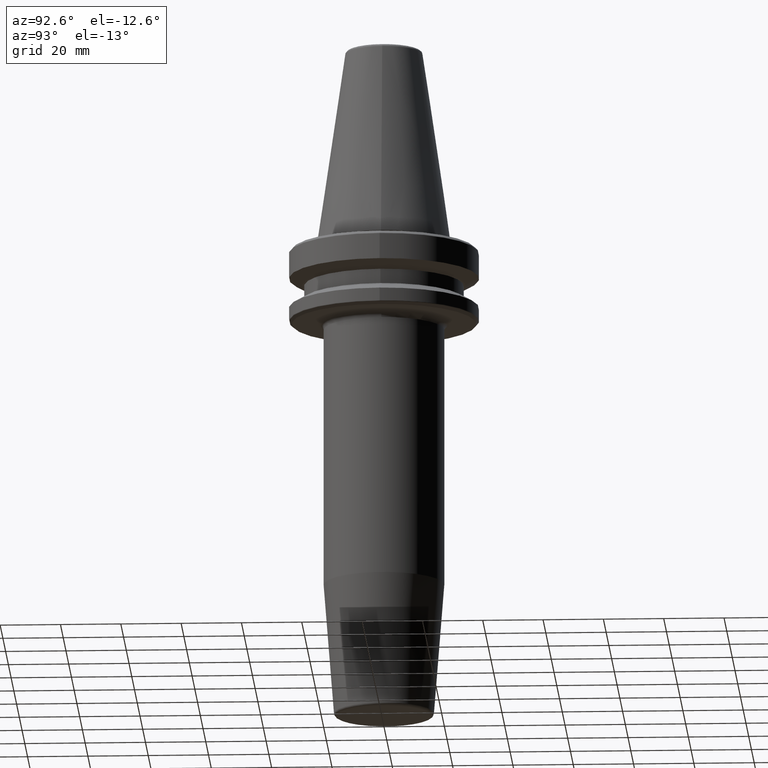
[diagram: clean part render]
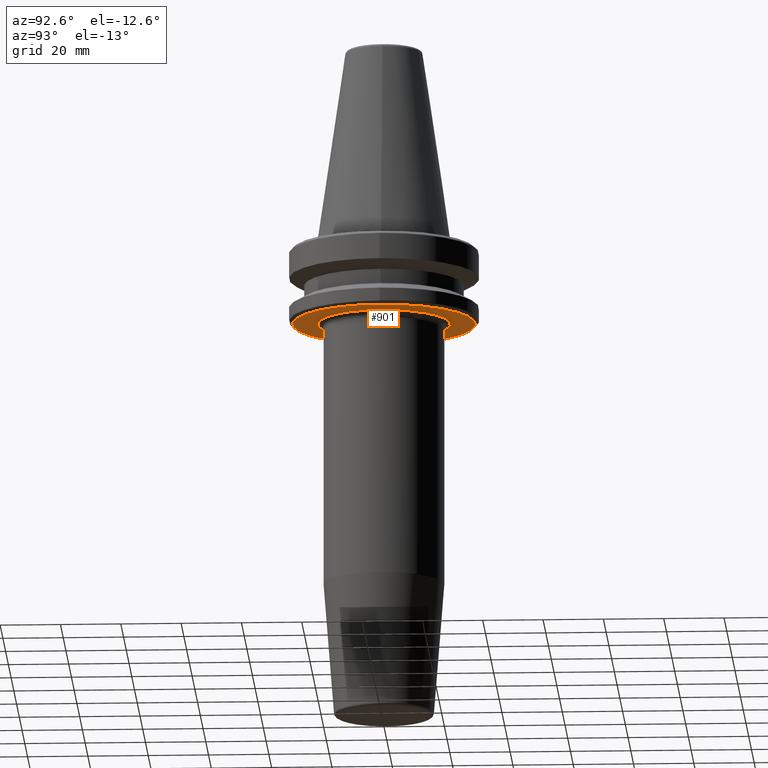
[diagram: same view with one face highlighted and labeled with its STEP entity id]
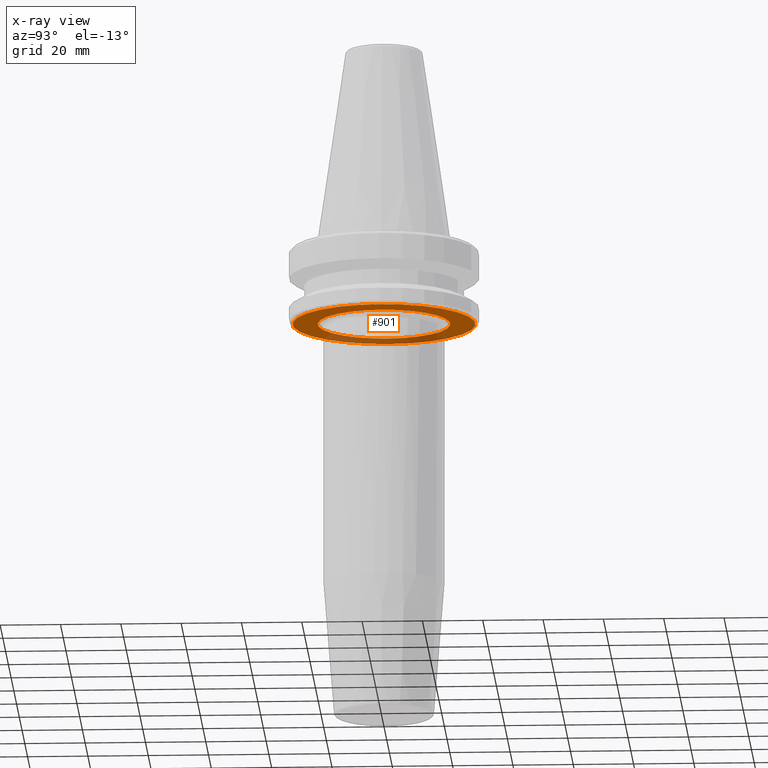
[diagram: x-ray of the same camera — body ghosted, the highlighted face saturated]
A machine part, auxiliary view. The second image highlights one B-rep face of the part: STEP entity #901.
The next image is the same camera in x-ray: the body ghosted, the highlighted face saturated — about 25% of this face is hidden behind the body in this view.
In plain terms, the highlighted planar face has unit normal (0, 0, -1).
Its self-contained STEP definition (entity closure, byte-faithful):
#72 = AXIS2_PLACEMENT_3D ( 'NONE', #1231, #1267, #974 ) ;
#86 = FACE_BOUND ( 'NONE', #1140, .T. ) ;
#131 = EDGE_CURVE ( 'NONE', #266, #232, #340, .T. ) ;
#150 = CARTESIAN_POINT ( 'NONE',  ( 0.0000000000000000000, 1.510090789926056700E-016, -27.00000000000000400 ) ) ;
#155 = DIRECTION ( 'NONE',  ( -0.0000000000000000000, -0.0000000000000000000, 1.000000000000000000 ) ) ;
#160 = VERTEX_POINT ( 'NONE', #1225 ) ;
#206 = EDGE_CURVE ( 'NONE', #960, #160, #315, .T. ) ;
#209 = CARTESIAN_POINT ( 'NONE',  ( 0.0000000000000000000, 3.088089149698245900E-015, -27.00000000000000400 ) ) ;
#232 = VERTEX_POINT ( 'NONE', #1210 ) ;
#256 = CIRCLE ( 'NONE', #72, 30.33431457505076200 ) ;
#266 = VERTEX_POINT ( 'NONE', #613 ) ;
#315 = CIRCLE ( 'NONE', #866, 30.33431457505076200 ) ;
#340 = CIRCLE ( 'NONE', #474, 22.00000000000000000 ) ;
#345 = ORIENTED_EDGE ( 'NONE', *, *, #206, .F. ) ;
#400 = ORIENTED_EDGE ( 'NONE', *, *, #1281, .T. ) ;
#410 = AXIS2_PLACEMENT_3D ( 'NONE', #879, #1158, #662 ) ;
#474 = AXIS2_PLACEMENT_3D ( 'NONE', #150, #155, #486 ) ;
#478 = ORIENTED_EDGE ( 'NONE', *, *, #131, .T. ) ;
#486 = DIRECTION ( 'NONE',  ( -1.000000000000000000, 0.0000000000000000000, 0.0000000000000000000 ) ) ;
#587 = AXIS2_PLACEMENT_3D ( 'NONE', #209, #1101, #1085 ) ;
#589 = FACE_OUTER_BOUND ( 'NONE', #658, .T. ) ;
#613 = CARTESIAN_POINT ( 'NONE',  ( -22.00000000000000000, 1.510090789926056700E-016, -27.00000000000000000 ) ) ;
#658 = EDGE_LOOP ( 'NONE', ( #1239, #345 ) ) ;
#662 = DIRECTION ( 'NONE',  ( -1.000000000000000000, 0.0000000000000000000, 0.0000000000000000000 ) ) ;
#667 = DIRECTION ( 'NONE',  ( -0.0000000000000000000, -0.0000000000000000000, 1.000000000000000000 ) ) ;
#766 = DIRECTION ( 'NONE',  ( 1.000000000000000000, 0.0000000000000000000, 0.0000000000000000000 ) ) ;
#866 = AXIS2_PLACEMENT_3D ( 'NONE', #1269, #667, #766 ) ;
#879 = CARTESIAN_POINT ( 'NONE',  ( 0.0000000000000000000, 1.510090789926056700E-016, -27.00000000000000400 ) ) ;
#901 = ADVANCED_FACE ( 'NONE', ( #86, #589 ), #1086, .T. ) ;
#960 = VERTEX_POINT ( 'NONE', #1237 ) ;
#974 = DIRECTION ( 'NONE',  ( 1.000000000000000000, 0.0000000000000000000, 0.0000000000000000000 ) ) ;
#1085 = DIRECTION ( 'NONE',  ( -1.000000000000000000, 0.0000000000000000000, -0.0000000000000000000 ) ) ;
#1086 = PLANE ( 'NONE',  #587 ) ;
#1101 = DIRECTION ( 'NONE',  ( 0.0000000000000000000, 0.0000000000000000000, -1.000000000000000000 ) ) ;
#1140 = EDGE_LOOP ( 'NONE', ( #478, #400 ) ) ;
#1158 = DIRECTION ( 'NONE',  ( -0.0000000000000000000, -0.0000000000000000000, 1.000000000000000000 ) ) ;
#1199 = EDGE_CURVE ( 'NONE', #160, #960, #256, .T. ) ;
#1210 = CARTESIAN_POINT ( 'NONE',  ( 22.00000000000000000, 2.845232037116782300E-015, -27.00000000000000000 ) ) ;
#1225 = CARTESIAN_POINT ( 'NONE',  ( 30.33431457505076200, 0.0000000000000000000, -26.99999999999999600 ) ) ;
#1229 = CIRCLE ( 'NONE', #410, 22.00000000000000000 ) ;
#1231 = CARTESIAN_POINT ( 'NONE',  ( 0.0000000000000000000, 0.0000000000000000000, -26.99999999999999600 ) ) ;
#1237 = CARTESIAN_POINT ( 'NONE',  ( -30.33431457505076200, 3.732201245991191800E-015, -26.99999999999999600 ) ) ;
#1239 = ORIENTED_EDGE ( 'NONE', *, *, #1199, .F. ) ;
#1267 = DIRECTION ( 'NONE',  ( -0.0000000000000000000, -0.0000000000000000000, 1.000000000000000000 ) ) ;
#1269 = CARTESIAN_POINT ( 'NONE',  ( 0.0000000000000000000, 0.0000000000000000000, -26.99999999999999600 ) ) ;
#1281 = EDGE_CURVE ( 'NONE', #232, #266, #1229, .T. ) ;